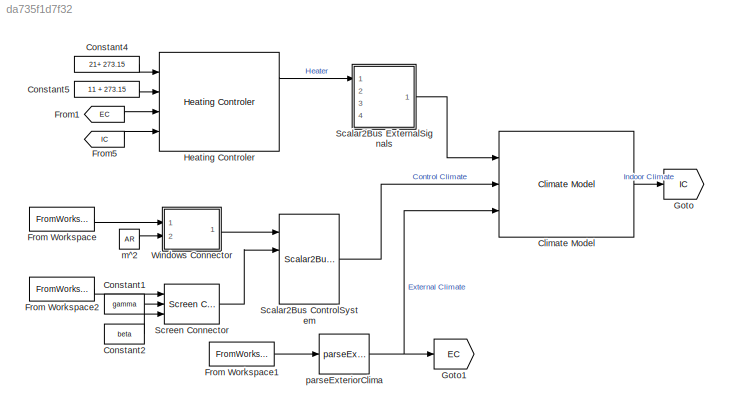
MODEL slx_da735f1d7f32
KIND model
CONFIG AbsTol = auto
CONFIG EnableMultiTasking = off
CONFIG FixedStep = auto
CONFIG MaxStep = auto
CONFIG MinStep = auto
CONFIG RelTol = 1e-3
CONFIG SampleTimeConstraint = Unconstrained
CONFIG SolverName = ode23tb
CONFIG StartTime = 0.0
CONFIG StopTime = 10
WORKSPACE source: mxarray member
WORKSPACE params: climate_p (value not decoded)
BLOCK [Reference] Climate Model  REF=HORTISIM/Climate/Models/Climate Model
  Ports = [3, 1]
  SourceBlock = HORTISIM/Climate/Models/Climate Model
  SourceProductName = Horti Simulator
BLOCK [Constant] Constant1
  Value = gamma
BLOCK [Constant] Constant2
  Value = beta
BLOCK [Constant] Constant4
  Value = 21+ 273.15
BLOCK [Constant] Constant5
  Value = 11 + 273.15
BLOCK [FromWorkspace] From Workspace
  VariableName = windows
BLOCK [FromWorkspace] From Workspace1
  VariableName = climate
BLOCK [FromWorkspace] From Workspace2
  VariableName = screen
BLOCK [From] From1
  GotoTag = EC
BLOCK [From] From5
  GotoTag = IC
BLOCK [Goto] Goto
  GotoTag = IC
BLOCK [Goto] Goto1
  GotoTag = EC
BLOCK [Reference] Heating Controler  REF=HORTISIM/Climate/Controls/Heating Controler
  NameLocation = top
  Ports = [4, 3]
  SourceBlock = HORTISIM/Climate/Controls/Heating Controler
  SourceProductName = Horti Simulator
BLOCK [Reference] Scalar2Bus ControlSystem  REF=HORTISIM/Other 
Functions/Scalar2Bus 
Control Climate
  Ports = [4, 1]
  SourceBlock = HORTISIM/Other \nFunctions/Scalar2Bus \nControl Climate
  SourceProductName = Horti Simulator
  SourceType = SubSystem
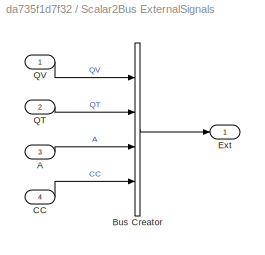
BLOCK [SubSystem] Scalar2Bus ExternalSignals
  Ports = [4, 1]
  RequestExecContextInheritance = off
BLOCK [Inport] Scalar2Bus ExternalSignals/A
  Port = 3
BLOCK [BusCreator] Scalar2Bus ExternalSignals/Bus Creator
  DisplayOption = bar
  InheritFromInputs = on
  Inputs = 4
  Ports = [4, 1]
BLOCK [Inport] Scalar2Bus ExternalSignals/CC
  Port = 4
BLOCK [Outport] Scalar2Bus ExternalSignals/Ext
BLOCK [Inport] Scalar2Bus ExternalSignals/QT
  Port = 2
BLOCK [Inport] Scalar2Bus ExternalSignals/QV
BLOCK [Reference] Screen Connector   REF=HORTISIM/Other 
Functions/Screen
Connector
  Ports = [3, 1]
  SourceBlock = HORTISIM/Other \nFunctions/Screen\nConnector
  SourceProductName = Horti Simulator
  SourceType = SubSystem
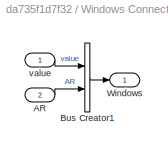
BLOCK [SubSystem] Windows Connector
  Ports = [2, 1]
  RequestExecContextInheritance = off
BLOCK [Inport] Windows Connector/AR
  Port = 2
BLOCK [BusCreator] Windows Connector/Bus Creator1
  DisplayOption = bar
  InheritFromInputs = on
  Inputs = 2
  Ports = [2, 1]
BLOCK [Outport] Windows Connector/Windows
BLOCK [Inport] Windows Connector/value
BLOCK [Constant] m^2
  Value = AR
BLOCK [Reference] parseExteriorClima   REF=HORTISIM/Other 
Functions/parseExteriorClima
  Ports = [1, 1]
  SourceBlock = HORTISIM/Other \nFunctions/parseExteriorClima
  SourceProductName = Horti Simulator
  SourceType = SubSystem
LINE Climate Model:1 -> Goto:1
LINE Constant1:1 -> Screen Connector :2
LINE Constant2:1 -> Screen Connector :3
LINE Constant4:1 -> Heating Controler:1
LINE Constant5:1 -> Heating Controler:2
LINE From Workspace1:1 -> parseExteriorClima :1
LINE From Workspace2:1 -> Screen Connector :1
LINE From Workspace:1 -> Windows Connector:1
LINE From1:1 -> Heating Controler:3
LINE From5:1 -> Heating Controler:4
LINE Heating Controler:1 -> Scalar2Bus ExternalSignals:1
LINE Scalar2Bus ControlSystem:1 -> Climate Model:2
LINE Scalar2Bus ExternalSignals/A:1 -> Scalar2Bus ExternalSignals/Bus Creator:3
LINE Scalar2Bus ExternalSignals/Bus Creator:1 -> Scalar2Bus ExternalSignals/Ext:1
LINE Scalar2Bus ExternalSignals/CC:1 -> Scalar2Bus ExternalSignals/Bus Creator:4
LINE Scalar2Bus ExternalSignals/QT:1 -> Scalar2Bus ExternalSignals/Bus Creator:2
LINE Scalar2Bus ExternalSignals/QV:1 -> Scalar2Bus ExternalSignals/Bus Creator:1
LINE Scalar2Bus ExternalSignals:1 -> Climate Model:1
LINE Screen Connector :1 -> Scalar2Bus ControlSystem:2
LINE Windows Connector/AR:1 -> Windows Connector/Bus Creator1:2
LINE Windows Connector/Bus Creator1:1 -> Windows Connector/Windows:1
LINE Windows Connector/value:1 -> Windows Connector/Bus Creator1:1
LINE Windows Connector:1 -> Scalar2Bus ControlSystem:1
LINE m^2:1 -> Windows Connector:2
NET parseExteriorClima :1 -> Climate Model:3, Goto1:1
note: NET lines group one-source signal fan-out (src -> all destinations, sorted); 1:1 wires keep LINE
